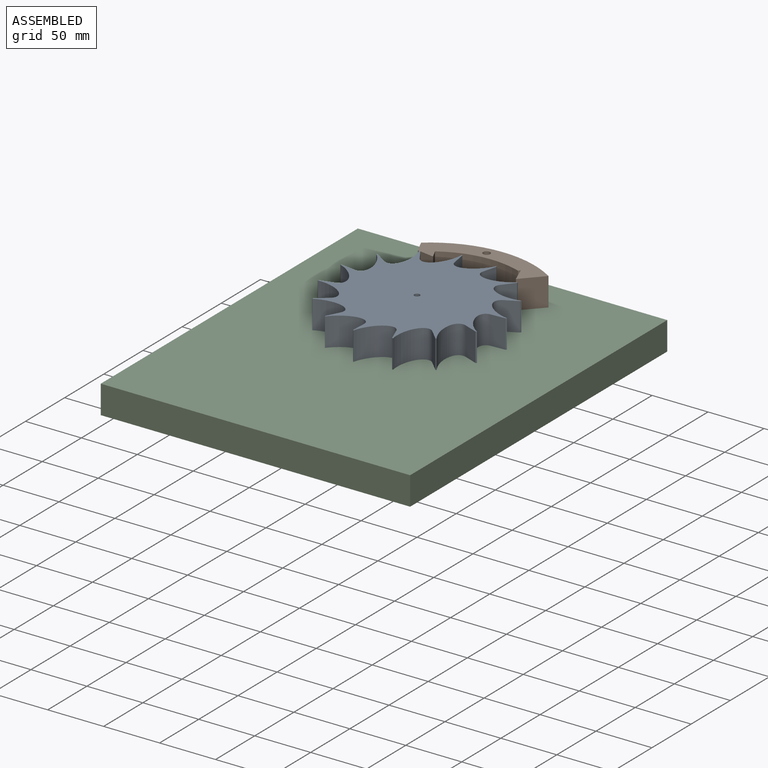
[diagram: assembled view]
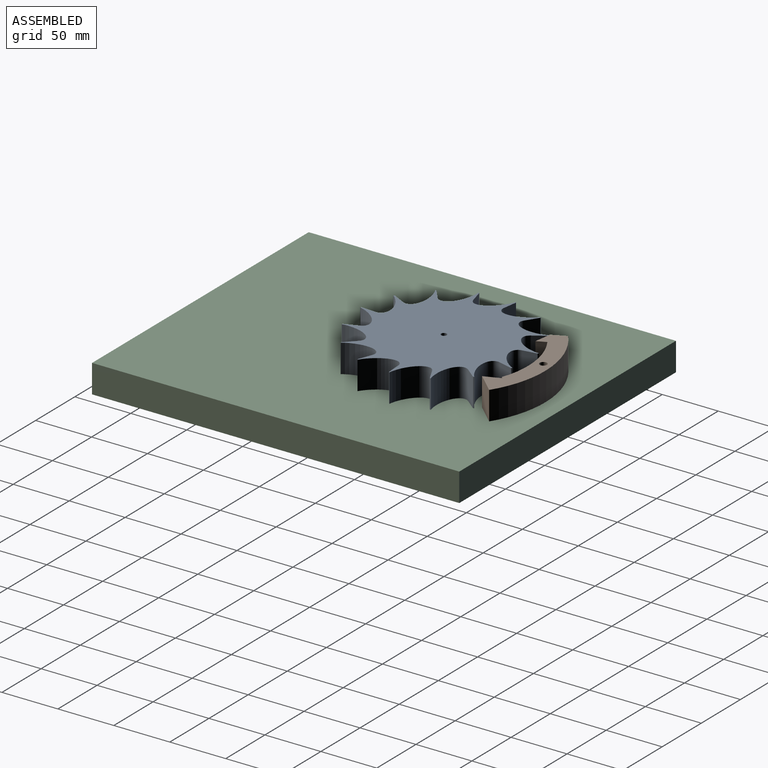
[diagram: assembled view, second angle]
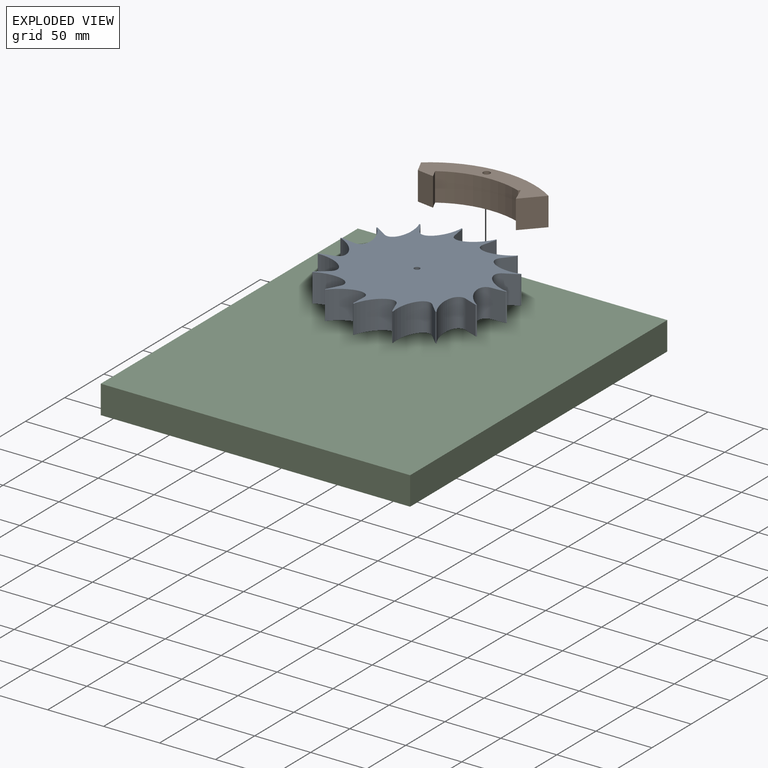
[diagram: exploded view]
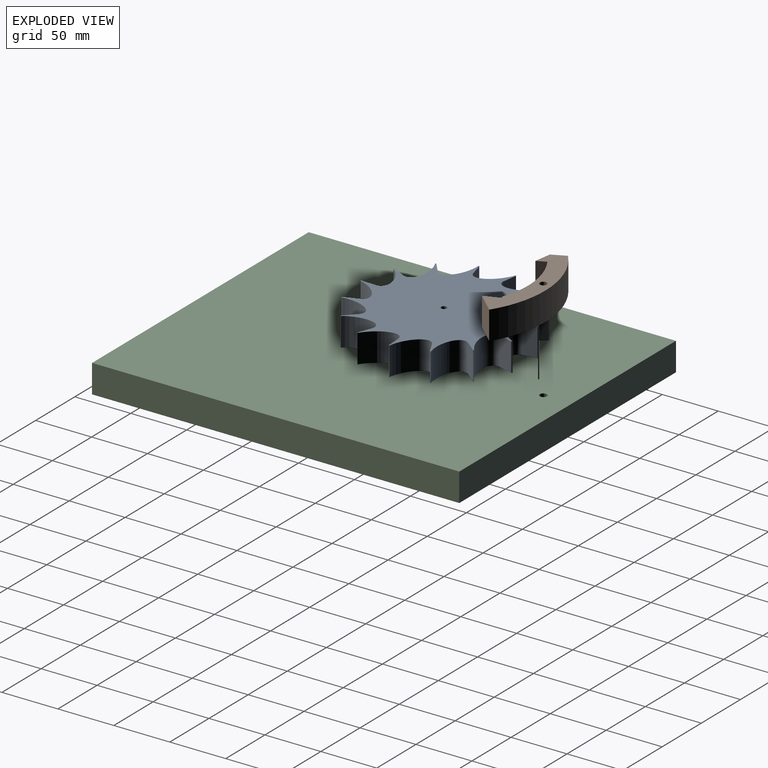
[diagram: exploded view, second angle]
ASSEMBLY  parts=3 mates=4
PART A: 48 faces, bbox 152.4x153.1x25.4 mm
  f0: extruded ~25.4x25.05mm, area 998.7mm2, adj f1,f45,f46,f47
  f1: plane 25.4x11.6mm, normal (0.41,-0.91,0), area 322.6mm2, adj f0,f2,f46,f47
  f2: plane 25.4x1.03mm, normal (0.93,-0.36,0), area 28.1mm2, adj f1,f3,f46,f47
  f3: extruded ~29.34x25.4mm, area 998.7mm2, adj f2,f4,f46,f47
  f4: plane 25.4x9.44mm, normal (0.74,-0.67,0), area 322.6mm2, adj f3,f5,f46,f47
  f5: plane 25.4x1.1mm, normal (1,0.05,0), area 28.1mm2, adj f4,f6,f46,f47
  f6: extruded ~31.69x25.4mm, area 998.7mm2, adj f5,f7,f46,f47
  f7: plane 25.4x12.08mm, normal (0.95,-0.31,0), area 322.6mm2, adj f6,f8,f46,f47
  f8: plane 25.4x0.99mm, normal (0.89,0.45,0), area 28.1mm2, adj f7,f9,f46,f47
  f9: extruded ~29.68x25.4mm, area 998.7mm2, adj f8,f10,f46,f47
  f10: plane 25.4x12.63mm, normal (0.99,0.1,0), area 322.6mm2, adj f9,f11,f46,f47
  f11: plane 25.4x0.86mm, normal (0.63,0.78,0), area 28.1mm2, adj f10,f12,f46,f47
  f12: extruded ~25.4x24.87mm, area 998.7mm2, adj f11,f13,f46,f47
  f13: plane 25.4x11mm, normal (0.87,0.5,0), area 322.6mm2, adj f12,f14,f46,f47
  f14: plane 25.4x1.07mm, normal (0.26,0.97,0), area 28.1mm2, adj f13,f15,f46,f47
  f15: extruded ~30.35x25.4mm, area 998.7mm2, adj f14,f16,f46,f47
  f16: plane 25.4x10.27mm, normal (0.59,0.81,0), area 322.6mm2, adj f15,f17,f46,f47
  f17: plane 25.4x1.09mm, normal (-0.16,0.99,0), area 28.1mm2, adj f16,f18,f46,f47
  f18: extruded ~31.59x25.4mm, area 998.7mm2, adj f17,f19,f46,f47
  f19: plane 25.4x12.42mm, normal (0.21,0.98,0), area 322.6mm2, adj f18,f20,f46,f47
  f20: plane 25.4x0.93mm, normal (-0.54,0.84,0), area 28.1mm2, adj f19,f21,f46,f47
  f21: extruded ~28.44x25.4mm, area 998.7mm2, adj f20,f22,f46,f47
  f22: plane 25.4x12.42mm, normal (-0.21,0.98,0), area 322.6mm2, adj f21,f23,f46,f47
  f23: plane 25.4x0.93mm, normal (-0.84,0.54,0), area 28.1mm2, adj f22,f24,f46,f47
  f24: extruded ~26.6x25.4mm, area 998.7mm2, adj f23,f25,f46,f47
  f25: plane 25.4x10.27mm, normal (-0.59,0.81,0), area 322.6mm2, adj f24,f26,f46,f47
  f26: plane 25.4x1.09mm, normal (-0.99,0.16,0), area 28.1mm2, adj f25,f27,f46,f47
  f27: extruded ~31.08x25.4mm, area 998.7mm2, adj f26,f28,f46,f47
  f28: plane 25.4x11mm, normal (-0.87,0.5,0), area 322.6mm2, adj f27,f29,f46,f47
  f29: plane 25.4x1.07mm, normal (-0.97,-0.26,0), area 28.1mm2, adj f28,f30,f46,f47
  f30: extruded ~31.22x25.4mm, area 998.7mm2, adj f29,f31,f46,f47
  f31: plane 25.4x12.63mm, normal (-0.99,0.1,0), area 322.6mm2, adj f30,f32,f46,f47
  f32: plane 25.4x0.86mm, normal (-0.78,-0.63,0), area 28.1mm2, adj f31,f33,f46,f47
  f33: extruded ~26.89x25.4mm, area 998.7mm2, adj f32,f34,f46,f47
  f34: plane 25.4x12.08mm, normal (-0.95,-0.31,0), area 322.6mm2, adj f33,f35,f46,f47
  f35: plane 25.4x0.99mm, normal (-0.45,-0.89,0), area 28.1mm2, adj f34,f36,f46,f47
  f36: extruded ~28.09x25.4mm, area 998.7mm2, adj f35,f37,f46,f47
  f37: plane 25.4x9.44mm, normal (-0.74,-0.67,0), area 322.6mm2, adj f36,f38,f46,f47
  f38: plane 25.4x1.1mm, normal (-0.05,-1,0), area 28.1mm2, adj f37,f39,f46,f47
  f39: extruded ~31.52x25.4mm, area 998.7mm2, adj f38,f40,f46,f47
  f40: plane 25.4x11.6mm, normal (-0.41,-0.91,0), area 322.6mm2, adj f39,f41,f46,f47
  f41: plane 25.4x1.03mm, normal (0.36,-0.93,0), area 28.1mm2, adj f40,f42,f46,f47
  f42: extruded ~30.6x25.4mm, area 998.7mm2, adj f41,f43,f46,f47
  f43: plane 25.4x12.7mm, normal (0,-1,0), area 322.6mm2, adj f42,f45,f46,f47
  f44: cylinder r=2.5mm len=25.4mm, axis (0,0,-1), area 399mm2, adj f46,f47
  f45: plane 25.4x0.78mm, normal (0.71,-0.71,0), area 28.1mm2, adj f0,f43,f46,f47
  f46: plane 153.12x152.44mm, normal (0,0,1), area 11964.5mm2, adj f0,f1,f2,f3,f4,f5,f6,f7
  f47: plane 153.12x152.44mm, normal (0,0,-1), area 11964.5mm2, adj f0,f1,f2,f3,f4,f5,f6,f7
PART B: 11 faces, bbox 109.6x36.7x25.4 mm
  f0: plane 25.4x1.61mm, normal (0.66,-0.75,0), area 54mm2, adj f1,f8,f9,f10
  f1: plane 25.4x14.78mm, normal (-0.97,-0.26,0), area 388.7mm2, adj f0,f2,f9,f10
  f2: plane 25.4x18.46mm, normal (0.66,-0.75,0), area 621.4mm2, adj f1,f3,f9,f10
  f3: cylinder r=93.98mm len=109.61mm, axis (0,0,-1), area 2977.1mm2, adj f2,f4,f9,f10
  f4: plane 25.4x12.81mm, normal (-0.95,-0.33,0), area 344mm2, adj f3,f5,f9,f10
  f5: plane 25.4x14.78mm, normal (-0.26,-0.97,0), area 388.7mm2, adj f4,f6,f9,f10
  f6: plane 25.4x8.47mm, normal (0.95,0.33,0), area 227.5mm2, adj f5,f8,f9,f10
  f7: cylinder r=3.17mm len=25.4mm, axis (0,0,-1), area 506.7mm2, adj f9,f10
  f8: cylinder r=78.74mm len=69.3mm, axis (0,0,-1), area 1822.8mm2, adj f0,f6,f9,f10
  f9: plane 109.61x36.72mm, normal (0,0,1), area 1712mm2, adj f0,f1,f2,f3,f4,f5,f6,f7
  f10: plane 109.61x36.72mm, normal (0,0,-1), area 1712mm2, adj f0,f1,f2,f3,f4,f5,f6,f7
PART C: 8 faces, bbox 276.5x328.2x25.4 mm
  f0: plane 328.21x25.4mm, normal (-1,0,0), area 8336.5mm2, adj f1,f5,f6,f7
  f1: plane 276.54x25.4mm, normal (0,-1,0), area 7024.1mm2, adj f0,f2,f6,f7
  f2: plane 328.21x25.4mm, normal (1,0,0), area 8336.5mm2, adj f1,f5,f6,f7
  f3: cylinder r=3.17mm len=25.4mm, axis (0,0,1), area 506.7mm2, adj f6,f7
  f4: cylinder r=2.5mm len=25.4mm, axis (0,0,1), area 399mm2, adj f6,f7
  f5: plane 276.54x25.4mm, normal (0,1,0), area 7024.1mm2, adj f0,f2,f6,f7
  f6: plane 328.21x276.54mm, normal (0,0,-1), area 90711.3mm2, adj f0,f1,f2,f3,f4,f5
  f7: plane 328.21x276.54mm, normal (0,0,1), area 90711.3mm2, adj f0,f1,f2,f3,f4,f5
PLACE A rot(axis=(0,0,-1),20.8deg) t=(0,0,0)mm
PLACE B rot(axis=(0,0,1),6.2deg) t=(9.66,0.53,0)mm
PLACE C at identity fixed
MATE cylindrical A.f44 <-> C.f4  axis (0,0,1) through (0,0,25.4)mm
MATE planar B.f3 <-> C.f7  axis (0,0,-1) through (9.39,3.05,0)mm
MATE planar C.f7 <-> A.f44  axis (0,0,1) through (5.38,-49.87,0)mm
MATE cylindrical C.f3 <-> B.f7  axis (0,0,1) through (0,88.9,0)mm
